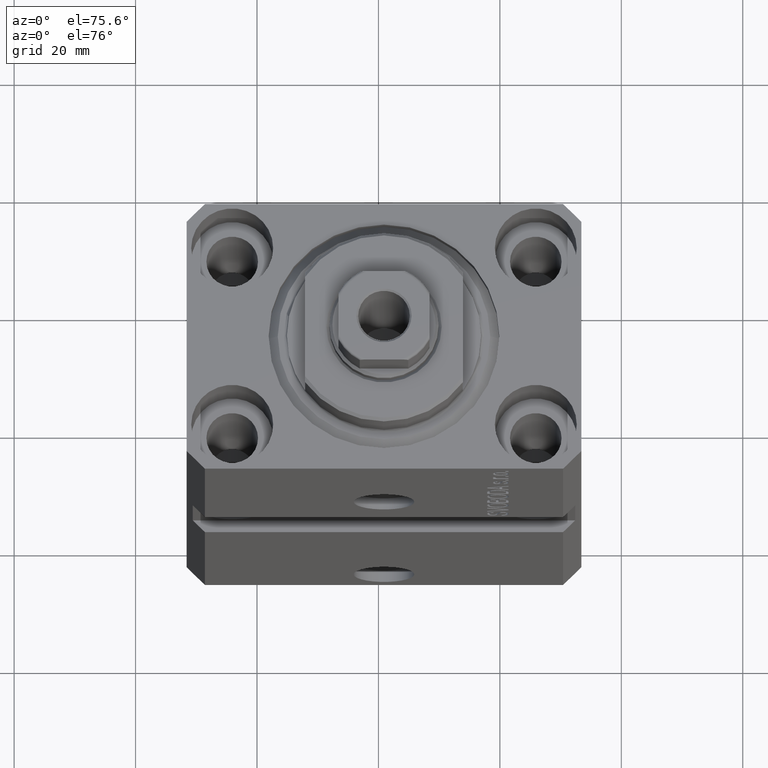
[diagram: clean part render]
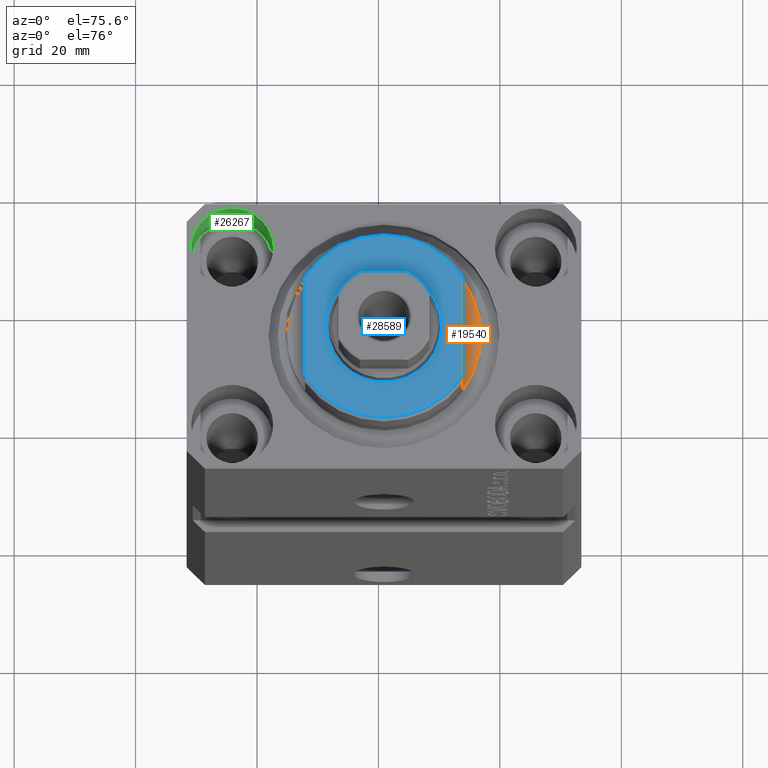
[diagram: same view with three faces highlighted in distinct colors, each labeled with its STEP entity id]
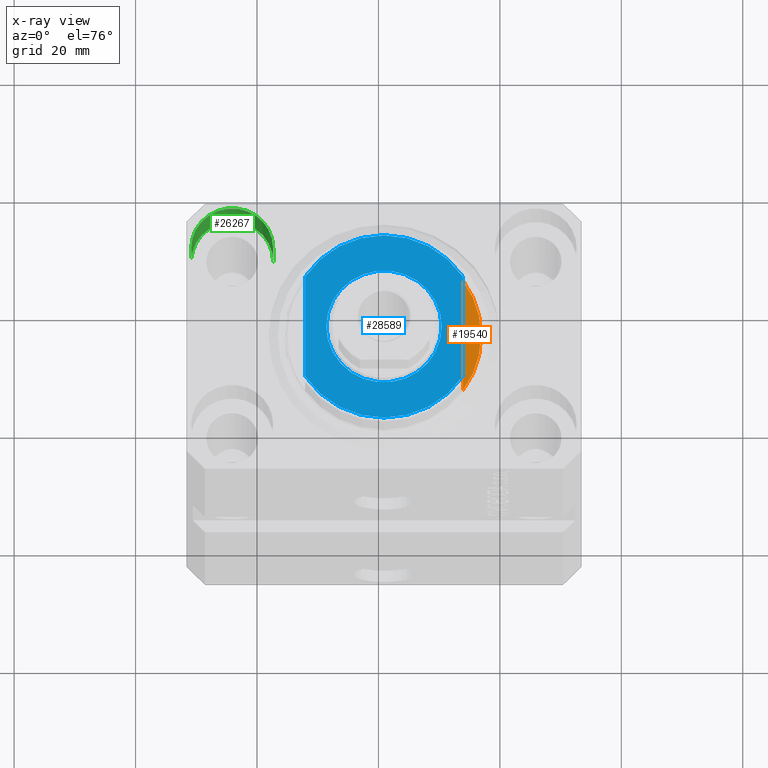
[diagram: x-ray of the same camera — body ghosted, the three highlighted faces saturated]
A machine part, auxiliary view with three faces highlighted in distinct colors.
The next image is the same camera in x-ray (body ghosted, the three faces saturated) — at least one of them is partly hidden behind the body in this view.
Their STEP definitions:

[orange] entity #19540 — the highlighted planar face has unit normal (0, 0, 1).
#2704 = EDGE_CURVE ( 'NONE', #39088, #24769, #9294, .T. ) ;
#3387 = PLANE ( 'NONE',  #28824 ) ;
#3612 = DIRECTION ( 'NONE',  ( 0.000000000000000000, 0.000000000000000000, -1.000000000000000000 ) ) ;
#4583 = ORIENTED_EDGE ( 'NONE', *, *, #39448, .T. ) ;
#4809 = CARTESIAN_POINT ( 'NONE',  ( -13.00000000000000000, -9.327379053088815652, -0.4999999999999995559 ) ) ;
#6579 = FACE_OUTER_BOUND ( 'NONE', #28725, .T. ) ;
#9294 = CIRCLE ( 'NONE', #38319, 16.00000000000000000 ) ;
#12194 = ORIENTED_EDGE ( 'NONE', *, *, #43929, .T. ) ;
#12973 = AXIS2_PLACEMENT_3D ( 'NONE', #41215, #17316, #26655 ) ;
#15910 = CIRCLE ( 'NONE', #12973, 16.00000000000000000 ) ;
#17316 = DIRECTION ( 'NONE',  ( -0.000000000000000000, -0.000000000000000000, -1.000000000000000000 ) ) ;
#18404 = DIRECTION ( 'NONE',  ( -0.000000000000000000, -1.000000000000000000, -0.000000000000000000 ) ) ;
#19519 = ORIENTED_EDGE ( 'NONE', *, *, #2704, .T. ) ;
#19540 = ADVANCED_FACE ( 'NONE', ( #6579 ), #3387, .T. ) ;
#22269 = CARTESIAN_POINT ( 'NONE',  ( -13.00000000000000000, -43.08131845707602992, -0.4999999999999995559 ) ) ;
#22506 = LINE ( 'NONE', #22269, #27356 ) ;
#24769 = VERTEX_POINT ( 'NONE', #41847 ) ;
#25741 = DIRECTION ( 'NONE',  ( 1.000000000000000000, 0.000000000000000000, 0.000000000000000000 ) ) ;
#26199 = CARTESIAN_POINT ( 'NONE',  ( -16.00000000000000000, 1.990051048614449313E-15, -0.4999999999999995559 ) ) ;
#26655 = DIRECTION ( 'NONE',  ( 1.000000000000000000, 2.664535259100375697E-15, 0.000000000000000000 ) ) ;
#27356 = VECTOR ( 'NONE', #18404, 1000.000000000000000 ) ;
#28725 = EDGE_LOOP ( 'NONE', ( #12194, #19519, #4583 ) ) ;
#28824 = AXIS2_PLACEMENT_3D ( 'NONE', #41594, #3612, #30891 ) ;
#29160 = CARTESIAN_POINT ( 'NONE',  ( 0.000000000000000000, 0.000000000000000000, -0.4999999999999995559 ) ) ;
#30891 = DIRECTION ( 'NONE',  ( -1.000000000000000000, 0.000000000000000000, -0.000000000000000000 ) ) ;
#36766 = VERTEX_POINT ( 'NONE', #4809 ) ;
#38319 = AXIS2_PLACEMENT_3D ( 'NONE', #29160, #43051, #25741 ) ;
#39088 = VERTEX_POINT ( 'NONE', #26199 ) ;
#39448 = EDGE_CURVE ( 'NONE', #24769, #36766, #22506, .T. ) ;
#41215 = CARTESIAN_POINT ( 'NONE',  ( 0.000000000000000000, 0.000000000000000000, -0.4999999999999995559 ) ) ;
#41594 = CARTESIAN_POINT ( 'NONE',  ( 0.000000000000000000, 0.000000000000000000, -0.4999999999999995559 ) ) ;
#41847 = CARTESIAN_POINT ( 'NONE',  ( -13.00000000000000000, 9.327379053088815652, -0.4999999999999995559 ) ) ;
#43051 = DIRECTION ( 'NONE',  ( -0.000000000000000000, -0.000000000000000000, -1.000000000000000000 ) ) ;
#43929 = EDGE_CURVE ( 'NONE', #36766, #39088, #15910, .T. ) ;

[blue] entity #28589 — the highlighted planar face has unit normal (0, 0, 1).
#1295 = DIRECTION ( 'NONE',  ( -1.000000000000000000, 0.000000000000000000, 0.000000000000000000 ) ) ;
#1444 = CARTESIAN_POINT ( 'NONE',  ( -9.500000000000001776, 0.000000000000000000, -6.500000000000000000 ) ) ;
#2277 = ORIENTED_EDGE ( 'NONE', *, *, #25583, .T. ) ;
#3639 = DIRECTION ( 'NONE',  ( -0.000000000000000000, -0.000000000000000000, 1.000000000000000000 ) ) ;
#3831 = EDGE_CURVE ( 'NONE', #18211, #26342, #25304, .T. ) ;
#4436 = VECTOR ( 'NONE', #39077, 1000.000000000000000 ) ;
#5056 = PLANE ( 'NONE',  #5879 ) ;
#5213 = LINE ( 'NONE', #5434, #4436 ) ;
#5434 = CARTESIAN_POINT ( 'NONE',  ( -13.00000000000000000, -43.08131845707602992, -6.500000000000000000 ) ) ;
#5879 = AXIS2_PLACEMENT_3D ( 'NONE', #33683, #12989, #16186 ) ;
#8517 = DIRECTION ( 'NONE',  ( -1.000000000000000000, 0.000000000000000000, 0.000000000000000000 ) ) ;
#8750 = DIRECTION ( 'NONE',  ( -0.000000000000000000, -0.000000000000000000, 1.000000000000000000 ) ) ;
#9000 = CARTESIAN_POINT ( 'NONE',  ( 0.000000000000000000, 0.000000000000000000, -6.500000000000000000 ) ) ;
#9989 = AXIS2_PLACEMENT_3D ( 'NONE', #9000, #22864, #1295 ) ;
#12989 = DIRECTION ( 'NONE',  ( 0.000000000000000000, 0.000000000000000000, -1.000000000000000000 ) ) ;
#13274 = CARTESIAN_POINT ( 'NONE',  ( 0.000000000000000000, 0.000000000000000000, -6.500000000000000000 ) ) ;
#14366 = FACE_BOUND ( 'NONE', #30262, .T. ) ;
#14980 = ORIENTED_EDGE ( 'NONE', *, *, #3831, .T. ) ;
#15772 = EDGE_LOOP ( 'NONE', ( #36668, #2277, #21034, #29326 ) ) ;
#16186 = DIRECTION ( 'NONE',  ( -1.000000000000000000, 0.000000000000000000, -0.000000000000000000 ) ) ;
#16520 = CIRCLE ( 'NONE', #9989, 15.50000000000003730 ) ;
#16621 = EDGE_CURVE ( 'NONE', #30760, #29987, #16520, .T. ) ;
#18211 = VERTEX_POINT ( 'NONE', #1444 ) ;
#18457 = CARTESIAN_POINT ( 'NONE',  ( 13.00000000000000000, -43.08131845707602992, -6.500000000000000000 ) ) ;
#18843 = AXIS2_PLACEMENT_3D ( 'NONE', #13274, #44658, #24394 ) ;
#21034 = ORIENTED_EDGE ( 'NONE', *, *, #16621, .T. ) ;
#22864 = DIRECTION ( 'NONE',  ( 0.000000000000000000, 0.000000000000000000, -1.000000000000000000 ) ) ;
#24394 = DIRECTION ( 'NONE',  ( -1.000000000000000000, 0.000000000000000000, 0.000000000000000000 ) ) ;
#25304 = CIRCLE ( 'NONE', #41301, 9.500000000000001776 ) ;
#25583 = EDGE_CURVE ( 'NONE', #31911, #30760, #28010, .T. ) ;
#25775 = EDGE_CURVE ( 'NONE', #34208, #31911, #43573, .T. ) ;
#26342 = VERTEX_POINT ( 'NONE', #37931 ) ;
#26661 = AXIS2_PLACEMENT_3D ( 'NONE', #43557, #8750, #8517 ) ;
#28010 = LINE ( 'NONE', #18457, #31196 ) ;
#28589 = ADVANCED_FACE ( 'NONE', ( #14366, #29594 ), #5056, .T. ) ;
#29326 = ORIENTED_EDGE ( 'NONE', *, *, #33145, .F. ) ;
#29546 = CARTESIAN_POINT ( 'NONE',  ( -13.00000000000000000, -8.440971508067137918, -6.500000000000000000 ) ) ;
#29594 = FACE_OUTER_BOUND ( 'NONE', #15772, .T. ) ;
#29987 = VERTEX_POINT ( 'NONE', #29546 ) ;
#30262 = EDGE_LOOP ( 'NONE', ( #14980, #33115 ) ) ;
#30760 = VERTEX_POINT ( 'NONE', #38034 ) ;
#31196 = VECTOR ( 'NONE', #31651, 1000.000000000000000 ) ;
#31651 = DIRECTION ( 'NONE',  ( 0.000000000000000000, -1.000000000000000000, -0.000000000000000000 ) ) ;
#31911 = VERTEX_POINT ( 'NONE', #34324 ) ;
#33115 = ORIENTED_EDGE ( 'NONE', *, *, #40712, .T. ) ;
#33145 = EDGE_CURVE ( 'NONE', #34208, #29987, #5213, .T. ) ;
#33683 = CARTESIAN_POINT ( 'NONE',  ( 0.000000000000000000, 0.000000000000000000, -6.500000000000000000 ) ) ;
#34208 = VERTEX_POINT ( 'NONE', #40207 ) ;
#34324 = CARTESIAN_POINT ( 'NONE',  ( 13.00000000000000000, 8.440971508067137918, -6.500000000000000000 ) ) ;
#36668 = ORIENTED_EDGE ( 'NONE', *, *, #25775, .T. ) ;
#37931 = CARTESIAN_POINT ( 'NONE',  ( 9.500000000000001776, 1.163414459189985880E-15, -6.500000000000000000 ) ) ;
#38034 = CARTESIAN_POINT ( 'NONE',  ( 13.00000000000000000, -8.440971508067137918, -6.500000000000000000 ) ) ;
#38407 = DIRECTION ( 'NONE',  ( -1.000000000000000000, 0.000000000000000000, 0.000000000000000000 ) ) ;
#39077 = DIRECTION ( 'NONE',  ( -0.000000000000000000, -1.000000000000000000, -0.000000000000000000 ) ) ;
#40207 = CARTESIAN_POINT ( 'NONE',  ( -13.00000000000000000, 8.440971508067137918, -6.500000000000000000 ) ) ;
#40712 = EDGE_CURVE ( 'NONE', #26342, #18211, #44847, .T. ) ;
#41301 = AXIS2_PLACEMENT_3D ( 'NONE', #42286, #3639, #38407 ) ;
#42286 = CARTESIAN_POINT ( 'NONE',  ( 0.000000000000000000, 0.000000000000000000, -6.500000000000000000 ) ) ;
#43557 = CARTESIAN_POINT ( 'NONE',  ( 0.000000000000000000, 0.000000000000000000, -6.500000000000000000 ) ) ;
#43573 = CIRCLE ( 'NONE', #18843, 15.50000000000003730 ) ;
#44658 = DIRECTION ( 'NONE',  ( 0.000000000000000000, 0.000000000000000000, -1.000000000000000000 ) ) ;
#44847 = CIRCLE ( 'NONE', #26661, 9.500000000000001776 ) ;

[green] entity #26267 — the highlighted cylindrical surface (partial cylindrical patch) has radius 6.75 mm, axis along (0, 0, 1).
#269 = DIRECTION ( 'NONE',  ( -0.000000000000000000, -0.000000000000000000, 1.000000000000000000 ) ) ;
#514 = VECTOR ( 'NONE', #875, 1000.000000000000000 ) ;
#875 = DIRECTION ( 'NONE',  ( -0.000000000000000000, -0.000000000000000000, 1.000000000000000000 ) ) ;
#2759 = ORIENTED_EDGE ( 'NONE', *, *, #38920, .T. ) ;
#3263 = DIRECTION ( 'NONE',  ( 1.000000000000000000, 0.000000000000000000, 0.000000000000000000 ) ) ;
#3339 = VERTEX_POINT ( 'NONE', #33050 ) ;
#4279 = CARTESIAN_POINT ( 'NONE',  ( -18.24999999997747224, 15.00000000000000000, -9.000000000000000000 ) ) ;
#5629 = DIRECTION ( 'NONE',  ( 1.000000000000000000, 0.000000000000000000, 0.000000000000000000 ) ) ;
#7640 = ORIENTED_EDGE ( 'NONE', *, *, #15872, .F. ) ;
#11828 = CARTESIAN_POINT ( 'NONE',  ( -25.00000000000000355, 15.00000000000000000, -9.000000000000000000 ) ) ;
#13111 = DIRECTION ( 'NONE',  ( 0.000000000000000000, 0.000000000000000000, 1.000000000000000000 ) ) ;
#14533 = VERTEX_POINT ( 'NONE', #27970 ) ;
#15244 = FACE_OUTER_BOUND ( 'NONE', #23620, .T. ) ;
#15872 = EDGE_CURVE ( 'NONE', #14533, #41295, #38451, .T. ) ;
#18322 = ORIENTED_EDGE ( 'NONE', *, *, #30808, .F. ) ;
#18814 = EDGE_CURVE ( 'NONE', #29295, #3339, #35403, .T. ) ;
#19985 = DIRECTION ( 'NONE',  ( -0.000000000000000000, -0.000000000000000000, 1.000000000000000000 ) ) ;
#21752 = AXIS2_PLACEMENT_3D ( 'NONE', #11828, #19985, #23622 ) ;
#23620 = EDGE_LOOP ( 'NONE', ( #7640, #18322, #24710, #2759 ) ) ;
#23622 = DIRECTION ( 'NONE',  ( 1.000000000000000000, 0.000000000000000000, 0.000000000000000000 ) ) ;
#24710 = ORIENTED_EDGE ( 'NONE', *, *, #18814, .T. ) ;
#24722 = CARTESIAN_POINT ( 'NONE',  ( -18.24999999997747224, 15.00000000000000000, -9.000000000000000000 ) ) ;
#25522 = AXIS2_PLACEMENT_3D ( 'NONE', #37161, #34413, #3263 ) ;
#26267 = ADVANCED_FACE ( 'NONE', ( #15244 ), #42998, .F. ) ;
#26523 = CARTESIAN_POINT ( 'NONE',  ( -25.00000000000000355, 15.00000000000000000, 0.000000000000000000 ) ) ;
#27970 = CARTESIAN_POINT ( 'NONE',  ( -31.75000000002253842, 15.00000000000000000, -9.000000000000000000 ) ) ;
#29295 = VERTEX_POINT ( 'NONE', #24722 ) ;
#29555 = AXIS2_PLACEMENT_3D ( 'NONE', #26523, #13111, #5629 ) ;
#29888 = CIRCLE ( 'NONE', #25522, 6.750000000022533087 ) ;
#30808 = EDGE_CURVE ( 'NONE', #29295, #14533, #29888, .T. ) ;
#31397 = CARTESIAN_POINT ( 'NONE',  ( -31.75000000002253842, 15.00000000000000000, -9.000000000000000000 ) ) ;
#33050 = CARTESIAN_POINT ( 'NONE',  ( -18.24999999997747224, 15.00000000000000000, 0.000000000000000000 ) ) ;
#34413 = DIRECTION ( 'NONE',  ( 0.000000000000000000, 0.000000000000000000, 1.000000000000000000 ) ) ;
#35403 = LINE ( 'NONE', #4279, #514 ) ;
#36071 = CIRCLE ( 'NONE', #29555, 6.750000000022533087 ) ;
#36836 = VECTOR ( 'NONE', #269, 1000.000000000000000 ) ;
#37161 = CARTESIAN_POINT ( 'NONE',  ( -25.00000000000000355, 15.00000000000000000, -9.000000000000000000 ) ) ;
#38451 = LINE ( 'NONE', #31397, #36836 ) ;
#38920 = EDGE_CURVE ( 'NONE', #3339, #41295, #36071, .T. ) ;
#41295 = VERTEX_POINT ( 'NONE', #44492 ) ;
#42998 = CYLINDRICAL_SURFACE ( 'NONE', #21752, 6.750000000022533087 ) ;
#44492 = CARTESIAN_POINT ( 'NONE',  ( -31.75000000002253842, 15.00000000000000000, 0.000000000000000000 ) ) ;